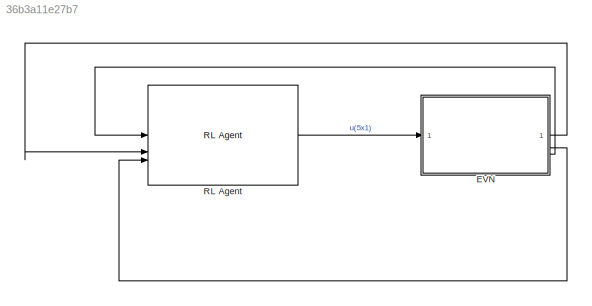
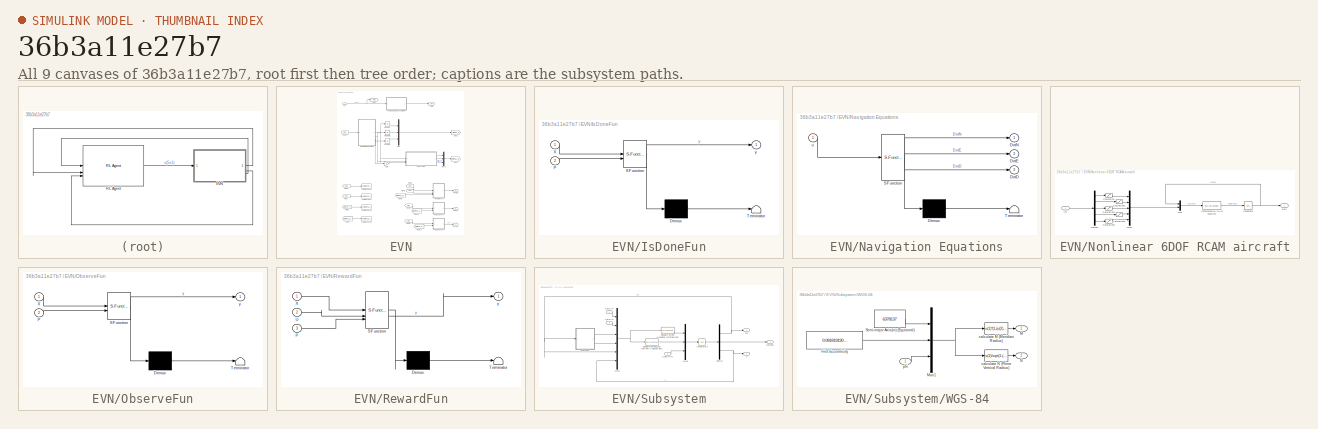
[diagram: thumbnail index - all 9 canvases of the model, root first then tree order]
MODEL slx_36b3a11e27b7
KIND model
CONFIG AbsTol = auto
CONFIG EnableMultiTasking = off
CONFIG FixedStep = auto
CONFIG MaxStep = auto
CONFIG MinStep = auto
CONFIG RelTol = 1e-3
CONFIG SampleTimeConstraint = Unconstrained
CONFIG SolverName = VariableStepAuto
CONFIG StartTime = 0.0
CONFIG StopTime = TF
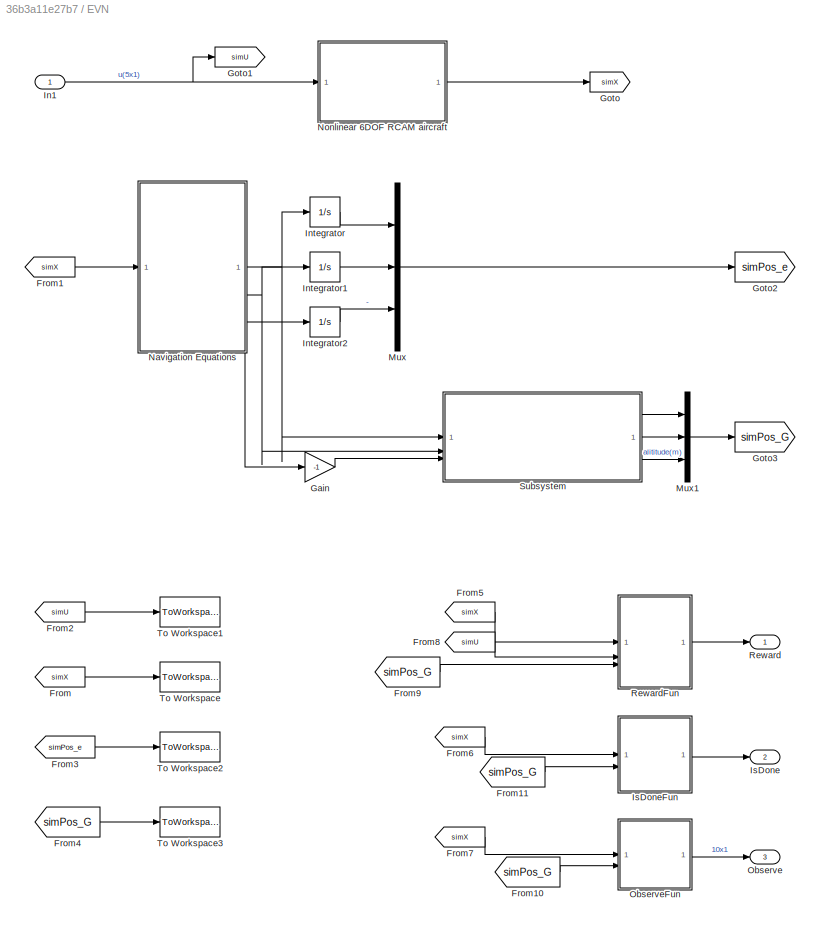
BLOCK [SubSystem] EVN
BLOCK [From] EVN/From
  GotoTag = simX
BLOCK [From] EVN/From1
  GotoTag = simX
BLOCK [From] EVN/From10
  GotoTag = simPos_G
BLOCK [From] EVN/From11
  GotoTag = simPos_G
BLOCK [From] EVN/From2
  GotoTag = simU
BLOCK [From] EVN/From3
  GotoTag = simPos_e
BLOCK [From] EVN/From4
  GotoTag = simPos_G
BLOCK [From] EVN/From5
  GotoTag = simX
BLOCK [From] EVN/From6
  GotoTag = simX
BLOCK [From] EVN/From7
  GotoTag = simX
BLOCK [From] EVN/From8
  GotoTag = simU
BLOCK [From] EVN/From9
  GotoTag = simPos_G
BLOCK [Gain] EVN/Gain
  Gain = -1
BLOCK [Goto] EVN/Goto
  GotoTag = simX
BLOCK [Goto] EVN/Goto1
  GotoTag = simU
BLOCK [Goto] EVN/Goto2
  GotoTag = simPos_e
BLOCK [Goto] EVN/Goto3
  GotoTag = simPos_G
BLOCK [Inport] EVN/In1
BLOCK [Integrator] EVN/Integrator
BLOCK [Integrator] EVN/Integrator1
BLOCK [Integrator] EVN/Integrator2
BLOCK [Outport] EVN/IsDone
  Port = 2
BLOCK [SubSystem] EVN/IsDoneFun
  ErrorFcn = Stateflow.Translate.translate
  LibrarySourceBlock = simulink/User-Defined\nFunctions/MATLAB Function
  PermitHierarchicalResolution = ExplicitOnly
  SFBlockType = MATLAB Function
  TreatAsAtomicUnit = on
BLOCK [Demux] EVN/IsDoneFun/ Demux 
  Outputs = 1
BLOCK [S-Function] EVN/IsDoneFun/ SFunction 
  EnableBusSupport = off
  FunctionName = sf_sfun
  PortCounts = [2 2]
  SFcnIsStateOwnerBlock = off
  SFunctionDeploymentMode = off
  Tag = Stateflow S-Function 3
BLOCK [Terminator] EVN/IsDoneFun/ Terminator 
BLOCK [Inport] EVN/IsDoneFun/P
  Port = 2
BLOCK [Inport] EVN/IsDoneFun/X
BLOCK [Outport] EVN/IsDoneFun/y
BLOCK [Mux] EVN/Mux
  DisplayOption = bar
  Inputs = 3
BLOCK [Mux] EVN/Mux1
  DisplayOption = bar
  Inputs = 3
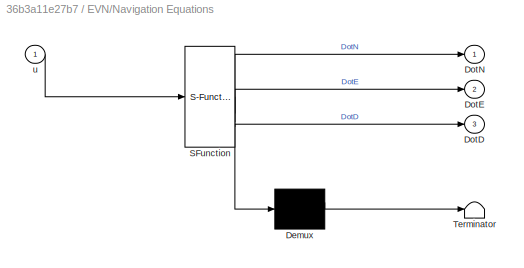
BLOCK [SubSystem] EVN/Navigation Equations
  ErrorFcn = Stateflow.Translate.translate
  PermitHierarchicalResolution = ExplicitOnly
  SFBlockType = MATLAB Function
  TreatAsAtomicUnit = on
BLOCK [Demux] EVN/Navigation Equations/ Demux 
  Outputs = 1
BLOCK [S-Function] EVN/Navigation Equations/ SFunction 
  EnableBusSupport = on
  FunctionName = sf_sfun
  PortCounts = [1 4]
  SFcnIsStateOwnerBlock = off
  SFunctionDeploymentMode = off
  Tag = Stateflow S-Function 2
BLOCK [Terminator] EVN/Navigation Equations/ Terminator 
BLOCK [Outport] EVN/Navigation Equations/DotD
  Port = 3
BLOCK [Outport] EVN/Navigation Equations/DotE
  Port = 2
BLOCK [Outport] EVN/Navigation Equations/DotN
BLOCK [Inport] EVN/Navigation Equations/u
BLOCK [SubSystem] EVN/Nonlinear 6DOF RCAM aircraft
BLOCK [Demux] EVN/Nonlinear 6DOF RCAM aircraft/Demux
  Outputs = 5
BLOCK [Inport] EVN/Nonlinear 6DOF RCAM aircraft/In1
BLOCK [Integrator] EVN/Nonlinear 6DOF RCAM aircraft/Integrator
  InitialCondition = x0
BLOCK [MATLABFcn] EVN/Nonlinear 6DOF RCAM aircraft/Interpreted MATLAB Function
  MATLABFcn = RCAM_model(u(1:9),u(10:14))
BLOCK [Mux] EVN/Nonlinear 6DOF RCAM aircraft/Mux
  DisplayOption = bar
  Inputs = 2
BLOCK [Mux] EVN/Nonlinear 6DOF RCAM aircraft/Mux1
  DisplayOption = bar
  Inputs = 5
BLOCK [Outport] EVN/Nonlinear 6DOF RCAM aircraft/Out1
BLOCK [Saturate] EVN/Nonlinear 6DOF RCAM aircraft/Saturation
  LowerLimit = u1min
  UpperLimit = u1max
BLOCK [Saturate] EVN/Nonlinear 6DOF RCAM aircraft/Saturation1
  LowerLimit = u2min
  UpperLimit = u2max
BLOCK [Saturate] EVN/Nonlinear 6DOF RCAM aircraft/Saturation2
  LowerLimit = u3min
  UpperLimit = u3max
BLOCK [Saturate] EVN/Nonlinear 6DOF RCAM aircraft/Saturation3
  LowerLimit = u4min
  UpperLimit = u4max
BLOCK [Saturate] EVN/Nonlinear 6DOF RCAM aircraft/Saturation4
  LowerLimit = u5min
  UpperLimit = u5max
BLOCK [Outport] EVN/Observe
  Port = 3
BLOCK [SubSystem] EVN/ObserveFun
  ErrorFcn = Stateflow.Translate.translate
  LibrarySourceBlock = simulink/User-Defined\nFunctions/MATLAB Function
  PermitHierarchicalResolution = ExplicitOnly
  SFBlockType = MATLAB Function
  TreatAsAtomicUnit = on
BLOCK [Demux] EVN/ObserveFun/ Demux 
  Outputs = 1
BLOCK [S-Function] EVN/ObserveFun/ SFunction 
  EnableBusSupport = off
  FunctionName = sf_sfun
  PortCounts = [2 2]
  SFcnIsStateOwnerBlock = off
  SFunctionDeploymentMode = off
  Tag = Stateflow S-Function 4
BLOCK [Terminator] EVN/ObserveFun/ Terminator 
BLOCK [Inport] EVN/ObserveFun/P
  Port = 2
BLOCK [Inport] EVN/ObserveFun/X
BLOCK [Outport] EVN/ObserveFun/y
BLOCK [Outport] EVN/Reward
BLOCK [SubSystem] EVN/RewardFun
  ErrorFcn = Stateflow.Translate.translate
  LibrarySourceBlock = simulink/User-Defined\nFunctions/MATLAB Function
  PermitHierarchicalResolution = ExplicitOnly
  SFBlockType = MATLAB Function
  TreatAsAtomicUnit = on
BLOCK [Demux] EVN/RewardFun/ Demux 
  Outputs = 1
BLOCK [S-Function] EVN/RewardFun/ SFunction 
  EnableBusSupport = off
  FunctionName = sf_sfun
  PortCounts = [3 2]
  SFcnIsStateOwnerBlock = off
  SFunctionDeploymentMode = off
  Tag = Stateflow S-Function 1
BLOCK [Terminator] EVN/RewardFun/ Terminator 
BLOCK [Inport] EVN/RewardFun/P
  Port = 3
BLOCK [Inport] EVN/RewardFun/U
  Port = 2
BLOCK [Inport] EVN/RewardFun/X
BLOCK [Outport] EVN/RewardFun/y
BLOCK [SubSystem] EVN/Subsystem
BLOCK [Fcn] EVN/Subsystem/Calculate lambda_dot (Terrestrial Longitude dot)
  Expr = u(2)/((u(4)+u(6))*cos(u(5)))
BLOCK [Fcn] EVN/Subsystem/Calculate phi_dot (Geodetic Lattitude dot)
  Expr = u(1)/(u(3)+u(6))
BLOCK [Demux] EVN/Subsystem/Demux
  Outputs = 3
BLOCK [Integrator] EVN/Subsystem/Integrator3
  InitialCondition = Pos_G0
BLOCK [Outport] EVN/Subsystem/Lambda
  Port = 2
BLOCK [Mux] EVN/Subsystem/Mux1
  DisplayOption = bar
  Inputs = 6
BLOCK [Mux] EVN/Subsystem/Mux2
  DisplayOption = bar
  Inputs = 3
BLOCK [Outport] EVN/Subsystem/Phi
BLOCK [Inport] EVN/Subsystem/V_E(m//s)
  Port = 2
BLOCK [Inport] EVN/Subsystem/V_N(m//s)
BLOCK [SubSystem] EVN/Subsystem/WGS-84
BLOCK [Constant] EVN/Subsystem/WGS-84/Frist Eccentricity
  Value = 0.081819190842622
BLOCK [Outport] EVN/Subsystem/WGS-84/M
BLOCK [Mux] EVN/Subsystem/WGS-84/Mux1
  DisplayOption = bar
  Inputs = 3
BLOCK [Outport] EVN/Subsystem/WGS-84/N
  Port = 2
BLOCK [Constant] EVN/Subsystem/WGS-84/Semi-major Axis(m) (Equitorial)
  Value = 6378137
BLOCK [Fcn] EVN/Subsystem/WGS-84/calculate M (Meridian Radius)
  Expr = u(1)*(1-(u(2)^2))/((1-u(2)^2)*(sin(u(3))^2))^(3/2)
BLOCK [Fcn] EVN/Subsystem/WGS-84/calculate N (Prime Vertical Radius)
  Expr = u(1)/sqrt(1-(u(2)^2)*(sin(u(3))^2))
BLOCK [Inport] EVN/Subsystem/WGS-84/phi
BLOCK [Outport] EVN/Subsystem/h
  Port = 3
BLOCK [Inport] EVN/Subsystem/h_dot(m//s)
  Port = 3
BLOCK [ToWorkspace] EVN/To Workspace
  FixptAsFi = on
  MaxDataPoints = inf
  SampleTime = -1
  SaveFormat = Timeseries
  VariableName = simX
BLOCK [ToWorkspace] EVN/To Workspace1
  FixptAsFi = on
  MaxDataPoints = inf
  SampleTime = -1
  SaveFormat = Timeseries
  VariableName = simU
BLOCK [ToWorkspace] EVN/To Workspace2
  FixptAsFi = on
  MaxDataPoints = inf
  SampleTime = -1
  SaveFormat = Timeseries
  VariableName = simPos_e
BLOCK [ToWorkspace] EVN/To Workspace3
  FixptAsFi = on
  MaxDataPoints = inf
  SampleTime = -1
  SaveFormat = Timeseries
  VariableName = simPos_G
BLOCK [Reference] RL Agent  REF=rllib/RL Agent
  SourceBlock = rllib/RL Agent
  SourceType = RL Agent
LINE EVN/From10:1 -> EVN/ObserveFun:2
LINE EVN/From11:1 -> EVN/IsDoneFun:2
LINE EVN/From1:1 -> EVN/Navigation Equations:1
LINE EVN/From2:1 -> EVN/To Workspace1:1
LINE EVN/From3:1 -> EVN/To Workspace2:1
LINE EVN/From4:1 -> EVN/To Workspace3:1
LINE EVN/From5:1 -> EVN/RewardFun:1
LINE EVN/From6:1 -> EVN/IsDoneFun:1
LINE EVN/From7:1 -> EVN/ObserveFun:1
LINE EVN/From8:1 -> EVN/RewardFun:2
LINE EVN/From9:1 -> EVN/RewardFun:3
LINE EVN/From:1 -> EVN/To Workspace:1
LINE EVN/Gain:1 -> EVN/Subsystem:3
NET EVN/In1:1 -> EVN/Goto1:1, EVN/Nonlinear 6DOF RCAM aircraft:1
LINE EVN/Integrator1:1 -> EVN/Mux:2
LINE EVN/Integrator2:1 -> EVN/Mux:3
LINE EVN/Integrator:1 -> EVN/Mux:1
LINE EVN/IsDoneFun:1 -> EVN/IsDone:1
LINE EVN/Mux1:1 -> EVN/Goto3:1
LINE EVN/Mux:1 -> EVN/Goto2:1
NET EVN/Navigation Equations:1 -> EVN/Integrator:1, EVN/Subsystem:1
NET EVN/Navigation Equations:2 -> EVN/Integrator1:1, EVN/Subsystem:2
NET EVN/Navigation Equations:3 -> EVN/Gain:1, EVN/Integrator2:1
LINE EVN/Nonlinear 6DOF RCAM aircraft/Demux:1 -> EVN/Nonlinear 6DOF RCAM aircraft/Saturation:1
LINE EVN/Nonlinear 6DOF RCAM aircraft/Demux:2 -> EVN/Nonlinear 6DOF RCAM aircraft/Saturation1:1
LINE EVN/Nonlinear 6DOF RCAM aircraft/Demux:3 -> EVN/Nonlinear 6DOF RCAM aircraft/Saturation2:1
LINE EVN/Nonlinear 6DOF RCAM aircraft/Demux:4 -> EVN/Nonlinear 6DOF RCAM aircraft/Saturation3:1
LINE EVN/Nonlinear 6DOF RCAM aircraft/Demux:5 -> EVN/Nonlinear 6DOF RCAM aircraft/Saturation4:1
LINE EVN/Nonlinear 6DOF RCAM aircraft/In1:1 -> EVN/Nonlinear 6DOF RCAM aircraft/Demux:1
NET EVN/Nonlinear 6DOF RCAM aircraft/Integrator:1 -> EVN/Nonlinear 6DOF RCAM aircraft/Mux:1, EVN/Nonlinear 6DOF RCAM aircraft/Out1:1
LINE EVN/Nonlinear 6DOF RCAM aircraft/Interpreted MATLAB Function:1 -> EVN/Nonlinear 6DOF RCAM aircraft/Integrator:1
LINE EVN/Nonlinear 6DOF RCAM aircraft/Mux1:1 -> EVN/Nonlinear 6DOF RCAM aircraft/Mux:2
LINE EVN/Nonlinear 6DOF RCAM aircraft/Mux:1 -> EVN/Nonlinear 6DOF RCAM aircraft/Interpreted MATLAB Function:1
LINE EVN/Nonlinear 6DOF RCAM aircraft/Saturation1:1 -> EVN/Nonlinear 6DOF RCAM aircraft/Mux1:2
LINE EVN/Nonlinear 6DOF RCAM aircraft/Saturation2:1 -> EVN/Nonlinear 6DOF RCAM aircraft/Mux1:3
LINE EVN/Nonlinear 6DOF RCAM aircraft/Saturation3:1 -> EVN/Nonlinear 6DOF RCAM aircraft/Mux1:4
LINE EVN/Nonlinear 6DOF RCAM aircraft/Saturation4:1 -> EVN/Nonlinear 6DOF RCAM aircraft/Mux1:5
LINE EVN/Nonlinear 6DOF RCAM aircraft/Saturation:1 -> EVN/Nonlinear 6DOF RCAM aircraft/Mux1:1
LINE EVN/Nonlinear 6DOF RCAM aircraft:1 -> EVN/Goto:1
LINE EVN/ObserveFun:1 -> EVN/Observe:1
LINE EVN/RewardFun:1 -> EVN/Reward:1
LINE EVN/Subsystem/Calculate lambda_dot (Terrestrial Longitude dot):1 -> EVN/Subsystem/Mux2:2
LINE EVN/Subsystem/Calculate phi_dot (Geodetic Lattitude dot):1 -> EVN/Subsystem/Mux2:1
NET EVN/Subsystem/Demux:1 -> EVN/Subsystem/Mux1:5, EVN/Subsystem/Phi:1, EVN/Subsystem/WGS-84:1
LINE EVN/Subsystem/Demux:2 -> EVN/Subsystem/Lambda:1
NET EVN/Subsystem/Demux:3 -> EVN/Subsystem/Mux1:6, EVN/Subsystem/h:1
LINE EVN/Subsystem/Integrator3:1 -> EVN/Subsystem/Demux:1
NET EVN/Subsystem/Mux1:1 -> EVN/Subsystem/Calculate lambda_dot (Terrestrial Longitude dot):1, EVN/Subsystem/Calculate phi_dot (Geodetic Lattitude dot):1
LINE EVN/Subsystem/Mux2:1 -> EVN/Subsystem/Integrator3:1
LINE EVN/Subsystem/V_E(m//s):1 -> EVN/Subsystem/Mux1:2
LINE EVN/Subsystem/V_N(m//s):1 -> EVN/Subsystem/Mux1:1
LINE EVN/Subsystem/WGS-84/Frist Eccentricity:1 -> EVN/Subsystem/WGS-84/Mux1:2
NET EVN/Subsystem/WGS-84/Mux1:1 -> EVN/Subsystem/WGS-84/calculate M (Meridian Radius):1, EVN/Subsystem/WGS-84/calculate N (Prime Vertical Radius):1
LINE EVN/Subsystem/WGS-84/Semi-major Axis(m) (Equitorial):1 -> EVN/Subsystem/WGS-84/Mux1:1
LINE EVN/Subsystem/WGS-84/calculate M (Meridian Radius):1 -> EVN/Subsystem/WGS-84/M:1
LINE EVN/Subsystem/WGS-84/calculate N (Prime Vertical Radius):1 -> EVN/Subsystem/WGS-84/N:1
LINE EVN/Subsystem/WGS-84/phi:1 -> EVN/Subsystem/WGS-84/Mux1:3
LINE EVN/Subsystem/WGS-84:1 -> EVN/Subsystem/Mux1:3
LINE EVN/Subsystem/WGS-84:2 -> EVN/Subsystem/Mux1:4
LINE EVN/Subsystem/h_dot(m//s):1 -> EVN/Subsystem/Mux2:3
LINE EVN/Subsystem:1 -> EVN/Mux1:1
LINE EVN/Subsystem:2 -> EVN/Mux1:2
LINE EVN/Subsystem:3 -> EVN/Mux1:3
LINE EVN:1 -> RL Agent:2
LINE EVN:2 -> RL Agent:3
LINE EVN:3 -> RL Agent:1
LINE RL Agent:1 -> EVN:1
note: NET lines group one-source signal fan-out (src -> all destinations, sorted); 1:1 wires keep LINE
CHART EVN/RewardFun states=1 transitions=1
  STATE_LABEL 'eML_blk_kernel()'
  STATE_LABEL 'SCRIPT:\nfunction y = fcn(X,U,P)\n%% 设计奖励函数\n% 目标任务平稳起飞到2000km\n\n\n%输入惩罚\n\nReward_U = sum(U.^2);\n\n%状态奖励\nReward_X= sum(X.^2);\n\n%位置奖励\nReward_P = (abs(P(3)-2000)/2000)^2;\n\ny = -Reward_U - Reward_X - Reward_P;\n\n\n\n\n\n\n'
CHART EVN/Navigation Equations states=1 transitions=1
  STATE_LABEL 'eML_blk_kernel()'
  STATE_LABEL "SCRIPT:\nfunction [DotN,DotE,DotD] = fcn(u)\nx1 = u(1);\nx2 = u(2);\nx3 = u(3);\nx4 = u(4);\nx5 = u(5);\nx6 = u(6);\nx7 = u(7);\nx8 = u(8);\nx9 = u(9);\n\n\n\n\nc1v = [cos(x9),sin(x9),0;-sin(x9),cos(x9),0;0,0,1];\nc21 = [cos(x8),0,-sin(x8);0,1,0;sin(x8),0,cos(x8)];\ncb2 = [1,0,0;0,cos(x7),sin(x7);0,-sin(x7),cos(x7)];\n\ncbv = cb2*c21*c1v;\ncvb = cbv';\nV_b = [x1,x2,x3]';\nV_e = cvb*V_b ;\nDotN= V_e(1);\nDotE= V_e(2);\nDot...<+10ch>"
CHART EVN/IsDoneFun states=1 transitions=1
  STATE_LABEL 'eML_blk_kernel()'
  STATE_LABEL 'SCRIPT:\nfunction y = fcn(X,P)\ny = 0;\nif P(3) > 4000\n    y = 1;\nend\n\n% 轴向速度\nif X(1)<0 || X(1)>300\n    y = 1;\nend\n% 攻角限制\nif X(2)<0 || X(2)>40\n    y = 1;\nend\n% 侧滑角限制\nif X(3)<0 || X(3)>40\n    y = 1;\nend\n% 俯仰角限制\nif X(7)<-20/57.3 || X(7)>20/57.3\n    y = 1;\nend\n% 滚转角限制\nif X(8)<-20/57.3 || X(8)>20/57.3\n    y = 1;\nend\n\n\n\n'
CHART EVN/ObserveFun states=1 transitions=1
  STATE_LABEL 'eML_blk_kernel()'
  STATE_LABEL 'SCRIPT:\nfunction y = fcn(X,P)\n y = [X;P(3)];\n'
CHART  states=0 transitions=0
CHART  states=0 transitions=0
CHART  states=0 transitions=0
CHART  states=0 transitions=0
